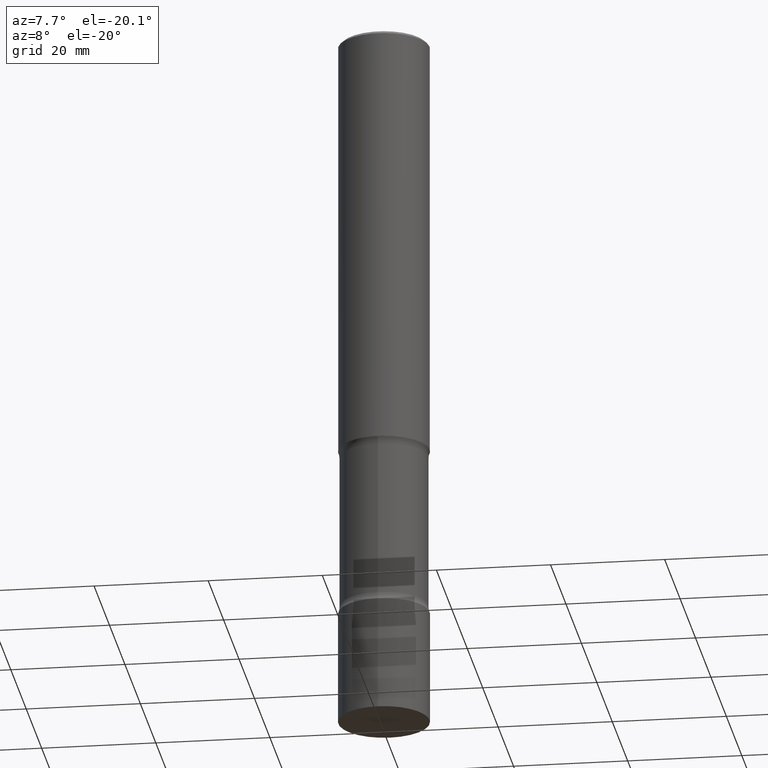
[diagram: clean part render]
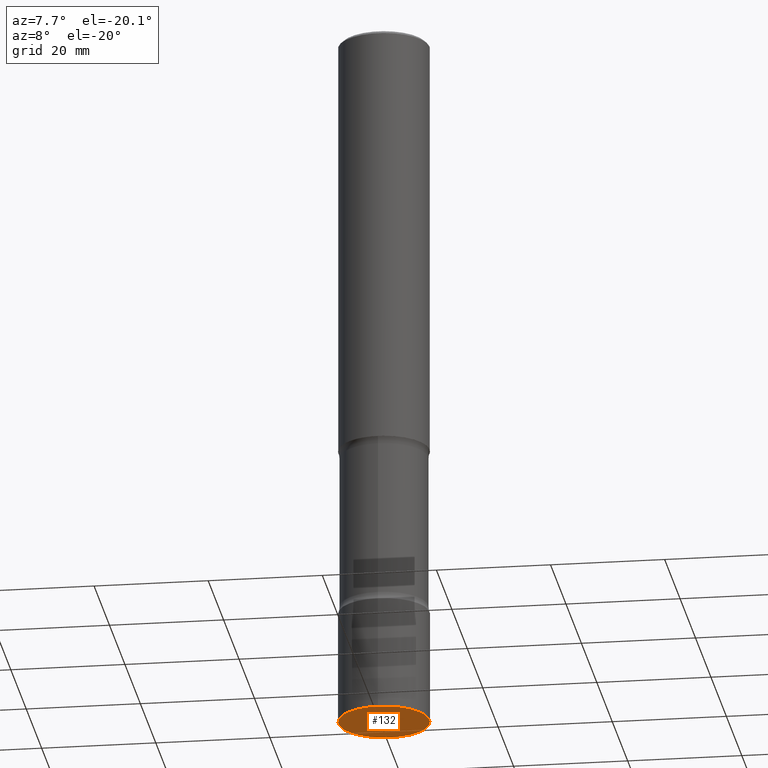
[diagram: same view with one face highlighted and labeled with its STEP entity id]
A machine part, auxiliary view. The second image highlights one B-rep face of the part: STEP entity #132.
In plain terms, the highlighted planar face has unit normal (0, -0, -1).
Its self-contained STEP definition (entity closure, byte-faithful):
#2 = CARTESIAN_POINT ( 'NONE',  ( 1.203946298913715486E-28, -1.717607208245619996E-14, -4.921299999999999564 ) ) ;
#6 = DIRECTION ( 'NONE',  ( 2.446398916777508940E-29, -3.490149367536260622E-15, -1.000000000000000000 ) ) ;
#76 = DIRECTION ( 'NONE',  ( -2.446398916777509220E-29, 3.490149367536260622E-15, 1.000000000000000000 ) ) ;
#86 = CIRCLE ( 'NONE', #335, 0.3149500000000000632 ) ;
#113 = DIRECTION ( 'NONE',  ( -2.446398916777509220E-29, 3.490149367536260622E-15, 1.000000000000000000 ) ) ;
#132 = ADVANCED_FACE ( 'NONE', ( #378 ), #191, .T. ) ;
#136 = ORIENTED_EDGE ( 'NONE', *, *, #176, .F. ) ;
#146 = AXIS2_PLACEMENT_3D ( 'NONE', #312, #6, #475 ) ;
#158 = CARTESIAN_POINT ( 'NONE',  ( 1.203946298913715486E-28, -1.717607208245619996E-14, -4.921299999999999564 ) ) ;
#172 = EDGE_CURVE ( 'NONE', #294, #248, #86, .T. ) ;
#176 = EDGE_CURVE ( 'NONE', #248, #294, #279, .T. ) ;
#191 = PLANE ( 'NONE',  #146 ) ;
#213 = CARTESIAN_POINT ( 'NONE',  ( 2.237854346276546425E-15, 0.3149499999999829103, -4.921300000000000452 ) ) ;
#214 = EDGE_LOOP ( 'NONE', ( #136, #321 ) ) ;
#231 = DIRECTION ( 'NONE',  ( -6.982962677686265922E-15, -1.000000000000000000, 3.469564049740292375E-15 ) ) ;
#248 = VERTEX_POINT ( 'NONE', #445 ) ;
#266 = DIRECTION ( 'NONE',  ( -6.982962677686265922E-15, -1.000000000000000000, 3.469564049740292375E-15 ) ) ;
#279 = CIRCLE ( 'NONE', #389, 0.3149500000000000632 ) ;
#294 = VERTEX_POINT ( 'NONE', #213 ) ;
#312 = CARTESIAN_POINT ( 'NONE',  ( 1.116405737123649585E-30, -3.425739267083567016E-14, -4.921299999999998676 ) ) ;
#321 = ORIENTED_EDGE ( 'NONE', *, *, #172, .F. ) ;
#335 = AXIS2_PLACEMENT_3D ( 'NONE', #2, #113, #266 ) ;
#378 = FACE_OUTER_BOUND ( 'NONE', #214, .T. ) ;
#389 = AXIS2_PLACEMENT_3D ( 'NONE', #158, #76, #231 ) ;
#445 = CARTESIAN_POINT ( 'NONE',  ( -2.199284095337169570E-15, -0.3149500000000172162, -4.921299999999998676 ) ) ;
#475 = DIRECTION ( 'NONE',  ( 6.982962677686265922E-15, 1.000000000000000000, -3.490149367536260622E-15 ) ) ;